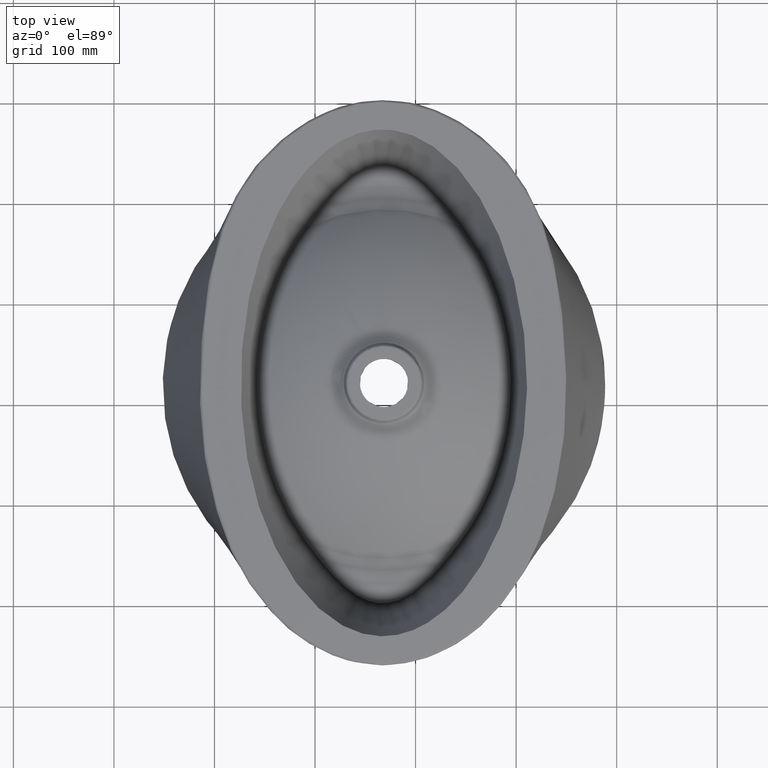
[diagram: clean part render]
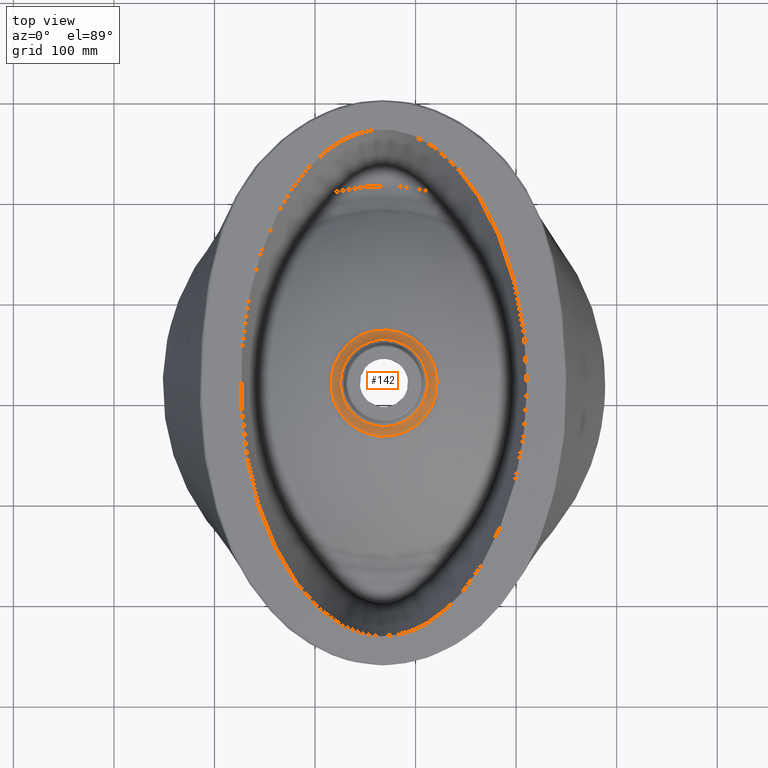
[diagram: same view with one face highlighted and labeled with its STEP entity id]
A machine part, top view. The second image highlights one B-rep face of the part: STEP entity #142.
In plain terms, the highlighted face is a freeform B-spline surface patch.
Its self-contained STEP definition (entity closure, byte-faithful):
#113=B_SPLINE_SURFACE_WITH_KNOTS('',3,3,((#1905,#1906,#1907,#1908),(#1909,
#1910,#1911,#1912),(#1913,#1914,#1915,#1916),(#1917,#1918,#1919,#1920),
(#1921,#1922,#1923,#1924),(#1925,#1926,#1927,#1928),(#1929,#1930,#1931,
#1932),(#1933,#1934,#1935,#1936),(#1937,#1938,#1939,#1940),(#1941,#1942,
#1943,#1944),(#1945,#1946,#1947,#1948),(#1949,#1950,#1951,#1952),(#1953,
#1954,#1955,#1956),(#1957,#1958,#1959,#1960),(#1961,#1962,#1963,#1964),
(#1965,#1966,#1967,#1968),(#1969,#1970,#1971,#1972),(#1973,#1974,#1975,
#1976),(#1977,#1978,#1979,#1980),(#1981,#1982,#1983,#1984),(#1985,#1986,
#1987,#1988),(#1989,#1990,#1991,#1992),(#1993,#1994,#1995,#1996),(#1997,
#1998,#1999,#2000),(#2001,#2002,#2003,#2004),(#2005,#2006,#2007,#2008),
(#2009,#2010,#2011,#2012),(#2013,#2014,#2015,#2016),(#2017,#2018,#2019,
#2020),(#2021,#2022,#2023,#2024),(#2025,#2026,#2027,#2028),(#2029,#2030,
#2031,#2032),(#2033,#2034,#2035,#2036),(#2037,#2038,#2039,#2040),(#2041,
#2042,#2043,#2044),(#2045,#2046,#2047,#2048),(#2049,#2050,#2051,#2052),
(#2053,#2054,#2055,#2056),(#2057,#2058,#2059,#2060),(#2061,#2062,#2063,
#2064),(#2065,#2066,#2067,#2068),(#2069,#2070,#2071,#2072),(#2073,#2074,
#2075,#2076),(#2077,#2078,#2079,#2080),(#2081,#2082,#2083,#2084),(#2085,
#2086,#2087,#2088),(#2089,#2090,#2091,#2092),(#2093,#2094,#2095,#2096),
(#2097,#2098,#2099,#2100),(#2101,#2102,#2103,#2104),(#2105,#2106,#2107,
#2108),(#2109,#2110,#2111,#2112),(#2113,#2114,#2115,#2116),(#2117,#2118,
#2119,#2120),(#2121,#2122,#2123,#2124),(#2125,#2126,#2127,#2128),(#2129,
#2130,#2131,#2132),(#2133,#2134,#2135,#2136),(#2137,#2138,#2139,#2140),
(#2141,#2142,#2143,#2144),(#2145,#2146,#2147,#2148),(#2149,#2150,#2151,
#2152),(#2153,#2154,#2155,#2156),(#2157,#2158,#2159,#2160),(#2161,#2162,
#2163,#2164),(#2165,#2166,#2167,#2168),(#2169,#2170,#2171,#2172),(#2173,
#2174,#2175,#2176),(#2177,#2178,#2179,#2180),(#2181,#2182,#2183,#2184),
(#2185,#2186,#2187,#2188),(#2189,#2190,#2191,#2192),(#2193,#2194,#2195,
#2196),(#2197,#2198,#2199,#2200),(#2201,#2202,#2203,#2204),(#2205,#2206,
#2207,#2208),(#2209,#2210,#2211,#2212),(#2213,#2214,#2215,#2216),(#2217,
#2218,#2219,#2220),(#2221,#2222,#2223,#2224),(#2225,#2226,#2227,#2228),
(#2229,#2230,#2231,#2232),(#2233,#2234,#2235,#2236),(#2237,#2238,#2239,
#2240),(#2241,#2242,#2243,#2244),(#2245,#2246,#2247,#2248),(#2249,#2250,
#2251,#2252),(#2253,#2254,#2255,#2256),(#2257,#2258,#2259,#2260),(#2261,
#2262,#2263,#2264),(#2265,#2266,#2267,#2268)),.UNSPECIFIED.,.T.,.F.,.F.,
(1,3,3,3,3,3,3,3,3,3,3,3,3,3,3,3,3,3,3,3,3,3,3,3,3,3,3,3,3,3,3,3,1),(4,
4),(-0.03125,0.,0.03125,0.0625000000000001,0.0937500000000001,0.125,0.15625,
0.1875,0.25,0.28125,0.3125,0.34375,0.375,0.40625,0.4375,0.46875,0.5,0.53125,
0.5625,0.59375,0.625,0.65625,0.6875,0.71875,0.75,0.8125,0.84375,0.875,0.90625,
0.9375,0.96875,1.,1.03125),(0.,1.),.UNSPECIFIED.);
#142=ADVANCED_FACE('',(#171,#172),#113,.T.);
#171=FACE_BOUND('',#204,.T.);
#172=FACE_BOUND('',#205,.T.);
#204=EDGE_LOOP('',(#254));
#205=EDGE_LOOP('',(#255));
#254=ORIENTED_EDGE('',*,*,#359,.T.);
#255=ORIENTED_EDGE('',*,*,#358,.T.);
#327=VERTEX_POINT('',#1268);
#328=VERTEX_POINT('',#1904);
#358=EDGE_CURVE('',#327,#327,#397,.T.);
#359=EDGE_CURVE('',#328,#328,#398,.T.);
#397=B_SPLINE_CURVE_WITH_KNOTS('',3,(#1177,#1178,#1179,#1180,#1181,#1182,
#1183,#1184,#1185,#1186,#1187,#1188,#1189,#1190,#1191,#1192,#1193,#1194,
#1195,#1196,#1197,#1198,#1199,#1200,#1201,#1202,#1203,#1204,#1205,#1206,
#1207,#1208,#1209,#1210,#1211,#1212,#1213,#1214,#1215,#1216,#1217,#1218,
#1219,#1220,#1221,#1222,#1223,#1224,#1225,#1226,#1227,#1228,#1229,#1230,
#1231,#1232,#1233,#1234,#1235,#1236,#1237,#1238,#1239,#1240,#1241,#1242,
#1243,#1244,#1245,#1246,#1247,#1248,#1249,#1250,#1251,#1252,#1253,#1254,
#1255,#1256,#1257,#1258,#1259,#1260,#1261,#1262,#1263,#1264,#1265,#1266,
#1267),.UNSPECIFIED.,.T.,.F.,(1,3,3,3,3,3,3,3,3,3,3,3,3,3,3,3,3,3,3,3,3,
3,3,3,3,3,3,3,3,3,3,3,1),(-0.03125,0.,0.03125,0.0624999999999999,0.09375,
0.125,0.15625,0.1875,0.25,0.28125,0.3125,0.34375,0.375,0.40625,0.4375,0.46875,
0.5,0.53125,0.5625,0.59375,0.625,0.65625,0.6875,0.71875,0.75,0.8125,0.84375,
0.875,0.90625,0.9375,0.96875,1.,1.03125),.UNSPECIFIED.);
#398=B_SPLINE_CURVE_WITH_KNOTS('',3,(#1813,#1814,#1815,#1816,#1817,#1818,
#1819,#1820,#1821,#1822,#1823,#1824,#1825,#1826,#1827,#1828,#1829,#1830,
#1831,#1832,#1833,#1834,#1835,#1836,#1837,#1838,#1839,#1840,#1841,#1842,
#1843,#1844,#1845,#1846,#1847,#1848,#1849,#1850,#1851,#1852,#1853,#1854,
#1855,#1856,#1857,#1858,#1859,#1860,#1861,#1862,#1863,#1864,#1865,#1866,
#1867,#1868,#1869,#1870,#1871,#1872,#1873,#1874,#1875,#1876,#1877,#1878,
#1879,#1880,#1881,#1882,#1883,#1884,#1885,#1886,#1887,#1888,#1889,#1890,
#1891,#1892,#1893,#1894,#1895,#1896,#1897,#1898,#1899,#1900,#1901,#1902,
#1903),.UNSPECIFIED.,.T.,.F.,(1,3,3,3,3,3,3,3,3,3,3,3,3,3,3,3,3,3,3,3,3,
3,3,3,3,3,3,3,3,3,3,3,1),(-0.03125,0.,0.03125,0.0625000000000001,0.0937500000000001,
0.125,0.15625,0.1875,0.25,0.28125,0.3125,0.34375,0.375,0.40625,0.4375,0.46875,
0.5,0.53125,0.5625,0.59375,0.625,0.65625,0.6875,0.71875,0.75,0.8125,0.84375,
0.875,0.90625,0.9375,0.96875,1.,1.03125),.UNSPECIFIED.);
#1177=CARTESIAN_POINT('',(251.203603856285,-229.984057679828,236.484429534104));
#1178=CARTESIAN_POINT('',(254.504285074435,-231.131225509551,236.4841846388));
#1179=CARTESIAN_POINT('',(257.865625167746,-231.938429762098,236.48351633577));
#1180=CARTESIAN_POINT('',(261.280975095904,-232.413874064229,236.483826752391));
#1181=CARTESIAN_POINT('',(264.696325024061,-232.889318366359,236.484137169011));
#1182=CARTESIAN_POINT('',(268.200274221157,-233.030035621638,236.484967793712));
#1183=CARTESIAN_POINT('',(271.661541713452,-232.8296229206,236.484360338313));
#1184=CARTESIAN_POINT('',(275.122809205748,-232.629210219562,236.483752882915));
#1185=CARTESIAN_POINT('',(278.529476222532,-232.091770768165,236.483540319828));
#1186=CARTESIAN_POINT('',(281.877086609996,-231.221788737702,236.484007594477));
#1187=CARTESIAN_POINT('',(285.22469699746,-230.351806707239,236.484474869126));
#1188=CARTESIAN_POINT('',(288.5268212123,-229.136029867212,236.485121776906));
#1189=CARTESIAN_POINT('',(291.634078423746,-227.634372946672,236.48440946252));
#1190=CARTESIAN_POINT('',(294.741335635192,-226.132716026133,236.483697148134));
#1191=CARTESIAN_POINT('',(297.687403980707,-224.334370851027,236.483536503372));
#1192=CARTESIAN_POINT('',(300.464801097345,-222.236472945791,236.484010315969));
#1193=CARTESIAN_POINT('',(303.242198213984,-220.138575040556,236.484484128567));
#1194=CARTESIAN_POINT('',(305.804468607405,-217.772913121959,236.484733044393));
#1195=CARTESIAN_POINT('',(308.096853649246,-215.200751658895,236.484248271385));
#1196=CARTESIAN_POINT('',(312.681623732927,-210.056428732767,236.483278725371));
#1197=CARTESIAN_POINT('',(316.283608489224,-203.932423104972,236.48474632667));
#1198=CARTESIAN_POINT('',(318.553520745294,-197.416270213941,236.4843273849));
#1199=CARTESIAN_POINT('',(319.688476873329,-194.158193768426,236.484117914015));
#1200=CARTESIAN_POINT('',(320.515625174468,-190.731904961712,236.484046832912));
#1201=CARTESIAN_POINT('',(320.994937087167,-187.303804866945,236.483961079013));
#1202=CARTESIAN_POINT('',(321.474248999865,-183.875704772179,236.483875325114));
#1203=CARTESIAN_POINT('',(321.613521571772,-180.435444203188,236.484568748967));
#1204=CARTESIAN_POINT('',(321.414512197684,-176.975495973843,236.484443103605));
#1205=CARTESIAN_POINT('',(321.215502823597,-173.515547744497,236.484317458243));
#1206=CARTESIAN_POINT('',(320.668950618815,-170.04117594627,236.483976786526));
#1207=CARTESIAN_POINT('',(319.803478140108,-166.701971303312,236.483928324786));
#1208=CARTESIAN_POINT('',(318.938005661402,-163.362766660354,236.483879863046));
#1209=CARTESIAN_POINT('',(317.751769132524,-160.123421843426,236.484506595007));
#1210=CARTESIAN_POINT('',(316.232107010083,-156.979779561151,236.484358570221));
#1211=CARTESIAN_POINT('',(314.712444887643,-153.836137278877,236.484210545435));
#1212=CARTESIAN_POINT('',(312.901716921675,-150.880772617699,236.484086001442));
#1213=CARTESIAN_POINT('',(310.823715268411,-148.128382497676,236.484549632874));
#1214=CARTESIAN_POINT('',(308.745713615147,-145.375992377652,236.485013264306));
#1215=CARTESIAN_POINT('',(306.373997015727,-142.797012894496,236.485082935706));
#1216=CARTESIAN_POINT('',(303.784673657299,-140.487590887325,236.484362058981));
#1217=CARTESIAN_POINT('',(301.195350298871,-138.178168880154,236.483641182256));
#1218=CARTESIAN_POINT('',(298.405602989752,-136.149995924477,236.483988181904));
#1219=CARTESIAN_POINT('',(295.42658777178,-134.396083930548,236.484172694874));
#1220=CARTESIAN_POINT('',(292.447572553808,-132.642171936619,236.484357207845));
#1221=CARTESIAN_POINT('',(289.258754359691,-131.162533016703,236.484502349206));
#1222=CARTESIAN_POINT('',(285.976576135453,-130.020181131538,236.484166828252));
#1223=CARTESIAN_POINT('',(282.694397911215,-128.877829246374,236.483831307299));
#1224=CARTESIAN_POINT('',(279.26927963217,-128.058281282792,236.484208553686));
#1225=CARTESIAN_POINT('',(275.844562814442,-127.583005263148,236.484297335159));
#1226=CARTESIAN_POINT('',(272.419845996713,-127.107729243505,236.484386116631));
#1227=CARTESIAN_POINT('',(268.979448007183,-126.967816801255,236.484531999096));
#1228=CARTESIAN_POINT('',(265.51531609032,-127.168792596557,236.484183876296));
#1229=CARTESIAN_POINT('',(262.051184173457,-127.369768391859,236.483835753496));
#1230=CARTESIAN_POINT('',(258.584752038489,-127.919965803922,236.483846036418));
#1231=CARTESIAN_POINT('',(255.247722868208,-128.788526761197,236.484027456491));
#1232=CARTESIAN_POINT('',(251.910693697926,-129.657087718471,236.484208876565));
#1233=CARTESIAN_POINT('',(248.663800359213,-130.848658586891,236.484788405733));
#1234=CARTESIAN_POINT('',(245.521142996613,-132.370075345379,236.484430700069));
#1235=CARTESIAN_POINT('',(242.378485634014,-133.891492103866,236.484072994405));
#1236=CARTESIAN_POINT('',(239.431720760806,-135.697114954661,236.483436220711));
#1237=CARTESIAN_POINT('',(236.679950744925,-137.776649623423,236.483753332178));
#1238=CARTESIAN_POINT('',(233.928180729043,-139.856184292185,236.484070443645));
#1239=CARTESIAN_POINT('',(231.349854494529,-142.238212606469,236.485227314462));
#1240=CARTESIAN_POINT('',(229.045564591665,-144.827175240955,236.484733430277));
#1241=CARTESIAN_POINT('',(226.7412746888,-147.416137875441,236.484239546092));
#1242=CARTESIAN_POINT('',(224.710117869525,-150.204467107586,236.483538093153));
#1243=CARTESIAN_POINT('',(222.956408614968,-153.188906189885,236.483793010407));
#1244=CARTESIAN_POINT('',(221.202699360411,-156.173345272184,236.484047927661));
#1245=CARTESIAN_POINT('',(219.73040319185,-159.369248473656,236.485176179643));
#1246=CARTESIAN_POINT('',(218.596705307143,-162.628872940857,236.484674025514));
#1247=CARTESIAN_POINT('',(216.329309537728,-169.148121875257,236.483669717256));
#1248=CARTESIAN_POINT('',(215.351100294958,-176.186962818079,236.484782089429));
#1249=CARTESIAN_POINT('',(215.752560334969,-183.068146457846,236.484520250633));
#1250=CARTESIAN_POINT('',(215.953290354975,-186.508738277729,236.484389331235));
#1251=CARTESIAN_POINT('',(216.496228780502,-189.961636078684,236.484513203026));
#1252=CARTESIAN_POINT('',(217.372000847585,-193.331229391843,236.484475947164));
#1253=CARTESIAN_POINT('',(218.247772914668,-196.700822705001,236.484438691301));
#1254=CARTESIAN_POINT('',(219.439297033806,-199.934369398847,236.484637409876));
#1255=CARTESIAN_POINT('',(220.942810644344,-203.041781574851,236.484418059583));
#1256=CARTESIAN_POINT('',(222.446324254882,-206.149193750854,236.48419870929));
#1257=CARTESIAN_POINT('',(224.287055083008,-209.157692622655,236.484127897629));
#1258=CARTESIAN_POINT('',(226.373130333001,-211.919001151154,236.484031090563));
#1259=CARTESIAN_POINT('',(228.459205582994,-214.680309679653,236.483934283497));
#1260=CARTESIAN_POINT('',(230.795338842015,-217.211258499501,236.48462700862));
#1261=CARTESIAN_POINT('',(233.386460713072,-219.517740969352,236.484498251119));
#1262=CARTESIAN_POINT('',(235.97758258413,-221.824223439202,236.484369493618));
#1263=CARTESIAN_POINT('',(238.820007553982,-223.891191409492,236.48398328872));
#1264=CARTESIAN_POINT('',(241.794465010375,-225.63853652409,236.483962761576));
#1265=CARTESIAN_POINT('',(244.768922466768,-227.385881638689,236.483942234433));
#1266=CARTESIAN_POINT('',(247.902922638135,-228.836889850104,236.484674429408));
#1267=CARTESIAN_POINT('',(251.203603856285,-229.984057679828,236.484429534104));
#1268=CARTESIAN_POINT('',(251.203605521211,-229.984052884276,236.484430601418));
#1813=CARTESIAN_POINT('',(254.360696583967,-220.902414069288,241.160742555782));
#1814=CARTESIAN_POINT('',(251.658243793951,-219.962956909894,241.161046422713));
#1815=CARTESIAN_POINT('',(249.097555156986,-218.778132386558,241.160120988136));
#1816=CARTESIAN_POINT('',(246.664198106565,-217.348441024559,241.160339469491));
#1817=CARTESIAN_POINT('',(244.230841056143,-215.91874966256,241.160557950846));
#1818=CARTESIAN_POINT('',(241.901159814309,-214.225107840676,241.160636984759));
#1819=CARTESIAN_POINT('',(239.779624780472,-212.336402250829,241.160823513861));
#1820=CARTESIAN_POINT('',(237.658089746635,-210.447696660982,241.161010042964));
#1821=CARTESIAN_POINT('',(235.751955338066,-208.383738702874,241.160114849802));
#1822=CARTESIAN_POINT('',(234.044544697194,-206.123328890928,241.160409055666));
#1823=CARTESIAN_POINT('',(232.337134056322,-203.862919078983,241.16070326153));
#1824=CARTESIAN_POINT('',(230.828054933145,-201.397525352288,241.160419092257));
#1825=CARTESIAN_POINT('',(229.598056388624,-198.854686904404,241.160801564015));
#1826=CARTESIAN_POINT('',(228.368057844104,-196.31184845652,241.161184035773));
#1827=CARTESIAN_POINT('',(227.394906600774,-193.672855945045,241.160739915354));
#1828=CARTESIAN_POINT('',(226.677381616515,-190.912490195587,241.160740368384));
#1829=CARTESIAN_POINT('',(225.959856632256,-188.152124446129,241.160740821414));
#1830=CARTESIAN_POINT('',(225.515109621778,-185.323506720159,241.160649532904));
#1831=CARTESIAN_POINT('',(225.351090105771,-182.508686404609,241.16086621456));
#1832=CARTESIAN_POINT('',(225.023051073757,-176.87904577351,241.161299577872));
#1833=CARTESIAN_POINT('',(225.818197058774,-171.13193138209,241.159566581617));
#1834=CARTESIAN_POINT('',(227.677791373681,-165.788371168173,241.161145402179));
#1835=CARTESIAN_POINT('',(228.607588531134,-163.116591061215,241.16193481246));
#1836=CARTESIAN_POINT('',(229.812675774228,-160.498527158416,241.160298601025));
#1837=CARTESIAN_POINT('',(231.245897488424,-158.059242870191,241.160030903165));
#1838=CARTESIAN_POINT('',(232.679119202621,-155.619958581967,241.159763205305));
#1839=CARTESIAN_POINT('',(234.337488343653,-153.342743543288,241.160413759833));
#1840=CARTESIAN_POINT('',(236.227160212269,-151.220475605809,241.161235730431));
#1841=CARTESIAN_POINT('',(238.116832080885,-149.09820766833,241.162057701029));
#1842=CARTESIAN_POINT('',(240.227805880037,-147.146683847958,241.160366602812));
#1843=CARTESIAN_POINT('',(242.477036472073,-145.446550948368,241.159904321605));
#1844=CARTESIAN_POINT('',(244.726267064108,-143.746418048777,241.159442040398));
#1845=CARTESIAN_POINT('',(247.137151683147,-142.269631319167,241.160277257193));
#1846=CARTESIAN_POINT('',(249.709973503579,-141.024489684759,241.160817676599));
#1847=CARTESIAN_POINT('',(252.282795324011,-139.779348050351,241.161358096005));
#1848=CARTESIAN_POINT('',(254.937873705251,-138.804066817887,241.160478486855));
#1849=CARTESIAN_POINT('',(257.669981551711,-138.092833536272,241.160277400374));
#1850=CARTESIAN_POINT('',(260.40208939817,-137.381600254657,241.160076313894));
#1851=CARTESIAN_POINT('',(263.239000635633,-136.931423735158,241.160038540089));
#1852=CARTESIAN_POINT('',(266.071366091124,-136.76740243767,241.160516331211));
#1853=CARTESIAN_POINT('',(268.903731546614,-136.603381140183,241.160994122333));
#1854=CARTESIAN_POINT('',(271.716326176696,-136.716792764649,241.160599591131));
#1855=CARTESIAN_POINT('',(274.523307362929,-137.106500280123,241.160705683465));
#1856=CARTESIAN_POINT('',(277.330288549162,-137.496207795596,241.1608117758));
#1857=CARTESIAN_POINT('',(280.131792429304,-138.166019767192,241.160043828075));
#1858=CARTESIAN_POINT('',(282.815407916378,-139.100324010564,241.16048057774));
#1859=CARTESIAN_POINT('',(285.499023403452,-140.034628253935,241.160917327406));
#1860=CARTESIAN_POINT('',(288.108443259406,-141.244672160769,241.16060536134));
#1861=CARTESIAN_POINT('',(290.5490417635,-142.681604141737,241.160510711813));
#1862=CARTESIAN_POINT('',(292.989640267593,-144.118536122706,241.160416062286));
#1863=CARTESIAN_POINT('',(295.267878174627,-145.774038350103,241.159672771122));
#1864=CARTESIAN_POINT('',(297.383808053213,-147.662253130211,241.160837499813));
#1865=CARTESIAN_POINT('',(299.499737931799,-149.550467910319,241.162002228505));
#1866=CARTESIAN_POINT('',(301.447775171073,-151.668615337496,241.162276615049));
#1867=CARTESIAN_POINT('',(303.150303545736,-153.922786713203,241.161491803861));
#1868=CARTESIAN_POINT('',(304.852831920399,-156.176958088911,241.160706992673));
#1869=CARTESIAN_POINT('',(306.331658027213,-158.590407413665,241.160482573795));
#1870=CARTESIAN_POINT('',(307.575541465307,-161.163819757696,241.160638036483));
#1871=CARTESIAN_POINT('',(308.8194249034,-163.737232101727,241.16079349917));
#1872=CARTESIAN_POINT('',(309.788575930263,-166.382252432874,241.160046013748));
#1873=CARTESIAN_POINT('',(310.496488753643,-169.114416502052,241.160312613169));
#1874=CARTESIAN_POINT('',(311.204401577023,-171.84658057123,241.16057921259));
#1875=CARTESIAN_POINT('',(311.652793641658,-174.694019683641,241.160580958846));
#1876=CARTESIAN_POINT('',(311.815579348263,-177.527083210933,241.160763715161));
#1877=CARTESIAN_POINT('',(311.978365054869,-180.360146738225,241.160946471475));
#1878=CARTESIAN_POINT('',(311.865509936837,-183.166519195619,241.160057526113));
#1879=CARTESIAN_POINT('',(311.47299101747,-185.972616915723,241.160318249221));
#1880=CARTESIAN_POINT('',(311.080472098102,-188.778714635828,241.160578972328));
#1881=CARTESIAN_POINT('',(310.403124195693,-191.586572234754,241.160361022727));
#1882=CARTESIAN_POINT('',(309.474131028258,-194.25277506793,241.160645255198));
#1883=CARTESIAN_POINT('',(307.616144693388,-199.585180734284,241.16121372014));
#1884=CARTESIAN_POINT('',(304.670911149663,-204.5951857905,241.159220053073));
#1885=CARTESIAN_POINT('',(300.91968196129,-208.802894059278,241.160645288815));
#1886=CARTESIAN_POINT('',(299.044067367104,-210.906748193668,241.161357906686));
#1887=CARTESIAN_POINT('',(296.942206361429,-212.848005522046,241.160796880107));
#1888=CARTESIAN_POINT('',(294.669226917486,-214.565244753171,241.160219426796));
#1889=CARTESIAN_POINT('',(292.396247473543,-216.282483984295,241.159641973484));
#1890=CARTESIAN_POINT('',(289.995899719228,-217.747908302525,241.159811228002));
#1891=CARTESIAN_POINT('',(287.451541233074,-218.976760246497,241.16091766071));
#1892=CARTESIAN_POINT('',(284.90718274692,-220.205612190468,241.162024093419));
#1893=CARTESIAN_POINT('',(282.197594027503,-221.204451912624,241.160790528604));
#1894=CARTESIAN_POINT('',(279.457943472629,-221.916737766674,241.16020885853));
#1895=CARTESIAN_POINT('',(276.718292917755,-222.629023620724,241.159627188455));
#1896=CARTESIAN_POINT('',(273.94127546177,-223.06714077895,241.159938077287));
#1897=CARTESIAN_POINT('',(271.106931262725,-223.230829642153,241.160731217343));
#1898=CARTESIAN_POINT('',(268.27258706368,-223.394518505357,241.161524357398));
#1899=CARTESIAN_POINT('',(265.398305758494,-223.27980190305,241.1604079004));
#1900=CARTESIAN_POINT('',(262.605900064338,-222.891263186108,241.160044391097));
#1901=CARTESIAN_POINT('',(259.813494370181,-222.502724469167,241.159680881795));
#1902=CARTESIAN_POINT('',(257.063149373983,-221.841871228681,241.160438688851));
#1903=CARTESIAN_POINT('',(254.360696583967,-220.902414069288,241.160742555782));
#1904=CARTESIAN_POINT('',(254.360691722704,-220.90242806106,241.160763542788));
#1905=CARTESIAN_POINT('',(254.360696583967,-220.902414069288,241.160742555782));
#1906=CARTESIAN_POINT('',(253.455110084923,-223.507181538538,238.846756456241));
#1907=CARTESIAN_POINT('',(252.360308442446,-226.656470836895,237.225126805652));
#1908=CARTESIAN_POINT('',(251.203603856285,-229.984057679828,236.484429534104));
#1909=CARTESIAN_POINT('',(251.658243793951,-219.962956909894,241.161046422713));
#1910=CARTESIAN_POINT('',(250.581143981849,-222.508160592243,238.847004721556));
#1911=CARTESIAN_POINT('',(249.2788895563,-225.585426625061,237.2253517089));
#1912=CARTESIAN_POINT('',(247.902922638135,-228.836889850104,236.484674429408));
#1913=CARTESIAN_POINT('',(249.097555156986,-218.778132386558,241.160120988136));
#1914=CARTESIAN_POINT('',(247.856071213124,-221.247050818924,238.846233470114));
#1915=CARTESIAN_POINT('',(246.355013019138,-224.231997150388,237.224654902975));
#1916=CARTESIAN_POINT('',(244.768922466768,-227.385881638689,236.483942234433));
#1917=CARTESIAN_POINT('',(246.664198106565,-217.348441024559,241.160339469491));
#1918=CARTESIAN_POINT('',(245.267466381795,-219.72619645091,238.846356848626));
#1919=CARTESIAN_POINT('',(243.578765140143,-222.600993546961,237.224706750541));
#1920=CARTESIAN_POINT('',(241.794465010375,-225.63853652409,236.483962761576));
#1921=CARTESIAN_POINT('',(244.230841056143,-215.91874966256,241.160557950846));
#1922=CARTESIAN_POINT('',(242.678861550466,-218.205342082896,238.846480227139));
#1923=CARTESIAN_POINT('',(240.802517261148,-220.969989943534,237.224758598108));
#1924=CARTESIAN_POINT('',(238.820007553982,-223.891191409492,236.48398328872));
#1925=CARTESIAN_POINT('',(241.901159814309,-214.225107840676,241.160636984759));
#1926=CARTESIAN_POINT('',(240.202070547642,-216.404611105963,238.846691153741));
#1927=CARTESIAN_POINT('',(238.147923376192,-219.039793266454,237.225079340391));
#1928=CARTESIAN_POINT('',(235.97758258413,-221.824223439202,236.484369493618));
#1929=CARTESIAN_POINT('',(239.779624780472,-212.336402250829,241.160823513861));
#1930=CARTESIAN_POINT('',(237.945909770917,-214.396120311148,238.846827899438));
#1931=CARTESIAN_POINT('',(235.728918039715,-216.886431585829,237.225193552092));
#1932=CARTESIAN_POINT('',(233.386460713072,-219.517740969352,236.484498251119));
#1933=CARTESIAN_POINT('',(237.658089746635,-210.447696660982,241.161010042964));
#1934=CARTESIAN_POINT('',(235.689748994192,-212.387629516334,238.846964645135));
#1935=CARTESIAN_POINT('',(233.309912703238,-214.733069905203,237.225307763793));
#1936=CARTESIAN_POINT('',(230.795338842015,-217.211258499501,236.48462700862));
#1937=CARTESIAN_POINT('',(235.751955338066,-208.383738702874,241.160114849802));
#1938=CARTESIAN_POINT('',(233.66025081104,-210.189742649618,238.84622665408));
#1939=CARTESIAN_POINT('',(231.13131292698,-212.373231930048,237.224647446554));
#1940=CARTESIAN_POINT('',(228.459205582994,-214.680309679653,236.483934283497));
#1941=CARTESIAN_POINT('',(234.044544697194,-206.123328890928,241.160409055666));
#1942=CARTESIAN_POINT('',(231.844225367862,-207.785619325874,238.84642275704));
#1943=CARTESIAN_POINT('',(229.183970955281,-209.795413344575,237.224771973238));
#1944=CARTESIAN_POINT('',(226.373130333001,-211.919001151154,236.484031090563));
#1945=CARTESIAN_POINT('',(232.337134056322,-203.862919078983,241.16070326153));
#1946=CARTESIAN_POINT('',(230.028199924684,-205.38149600213,238.84661886));
#1947=CARTESIAN_POINT('',(227.236628983582,-207.217594759103,237.224896499922));
#1948=CARTESIAN_POINT('',(224.287055083008,-209.157692622655,236.484127897629));
#1949=CARTESIAN_POINT('',(230.828054933145,-201.397525352288,241.160419092257));
#1950=CARTESIAN_POINT('',(228.423951906666,-202.760308060893,238.846505549476));
#1951=CARTESIAN_POINT('',(225.517381575923,-204.408066142603,237.224911485709));
#1952=CARTESIAN_POINT('',(222.446324254882,-206.149193750854,236.48419870929));
#1953=CARTESIAN_POINT('',(229.598056388624,-198.854686904404,241.160801564015));
#1954=CARTESIAN_POINT('',(227.115540441195,-200.055562009916,238.84677867195));
#1955=CARTESIAN_POINT('',(224.114113062781,-201.507543958342,237.225123331726));
#1956=CARTESIAN_POINT('',(220.942810644344,-203.041781574851,236.484418059583));
#1957=CARTESIAN_POINT('',(228.368057844104,-196.31184845652,241.161184035773));
#1958=CARTESIAN_POINT('',(225.807128975724,-197.350815958938,238.847051794424));
#1959=CARTESIAN_POINT('',(222.71084454964,-198.607021774081,237.225335177743));
#1960=CARTESIAN_POINT('',(219.439297033806,-199.934369398847,236.484637409876));
#1961=CARTESIAN_POINT('',(227.394906600774,-193.672855945045,241.160739915354));
#1962=CARTESIAN_POINT('',(224.771327048204,-194.541328895424,238.846765867576));
#1963=CARTESIAN_POINT('',(221.599328643729,-195.591352250526,237.225140960904));
#1964=CARTESIAN_POINT('',(218.247772914668,-196.700822705001,236.484438691301));
#1965=CARTESIAN_POINT('',(226.677381616515,-190.912490195587,241.160740368384));
#1966=CARTESIAN_POINT('',(224.008410542849,-191.606228110642,238.846794619753));
#1967=CARTESIAN_POINT('',(220.781538690942,-192.444985988832,237.225183811166));
#1968=CARTESIAN_POINT('',(217.372000847585,-193.331229391843,236.484475947164));
#1969=CARTESIAN_POINT('',(225.959856632256,-188.152124446129,241.160740821414));
#1970=CARTESIAN_POINT('',(223.245494037495,-188.67112732586,238.846823371929));
#1971=CARTESIAN_POINT('',(219.963748738154,-189.298619727139,237.225226661428));
#1972=CARTESIAN_POINT('',(216.496228780502,-189.961636078684,236.484513203026));
#1973=CARTESIAN_POINT('',(225.515109621778,-185.323506720159,241.160649532904));
#1974=CARTESIAN_POINT('',(222.772580726231,-185.663384998713,238.846706689077));
#1975=CARTESIAN_POINT('',(219.456782741525,-186.074393843775,237.225097471198));
#1976=CARTESIAN_POINT('',(215.953290354975,-186.508738277729,236.484389331235));
#1977=CARTESIAN_POINT('',(225.351090105771,-182.508686404609,241.16086621456));
#1978=CARTESIAN_POINT('',(222.598046114882,-182.669106471712,238.846858747299));
#1979=CARTESIAN_POINT('',(219.269511643816,-182.863113482874,237.225216775951));
#1980=CARTESIAN_POINT('',(215.752560334969,-183.068146457846,236.484520250633));
#1981=CARTESIAN_POINT('',(225.023051073757,-176.87904577351,241.161299577872));
#1982=CARTESIAN_POINT('',(222.248976892185,-176.68054941771,238.847162863743));
#1983=CARTESIAN_POINT('',(218.894969448398,-176.440552761071,237.225455385458));
#1984=CARTESIAN_POINT('',(215.351100294958,-176.186962818079,236.484782089429));
#1985=CARTESIAN_POINT('',(225.818197058774,-171.13193138209,241.159566581617));
#1986=CARTESIAN_POINT('',(223.096673388295,-170.56252290692,238.84586033857));
#1987=CARTESIAN_POINT('',(219.806185113402,-169.87459594404,237.224387081139));
#1988=CARTESIAN_POINT('',(216.329309537728,-169.148121875257,236.483669717256));
#1989=CARTESIAN_POINT('',(227.677791373681,-165.788371168173,241.161145402179));
#1990=CARTESIAN_POINT('',(225.073224412392,-164.882031194204,238.847064874588));
#1991=CARTESIAN_POINT('',(221.924121290254,-163.786392890687,237.225376620018));
#1992=CARTESIAN_POINT('',(218.596705307143,-162.628872940857,236.484674025514));
#1993=CARTESIAN_POINT('',(228.607588531134,-163.116591061215,241.16193481246));
#1994=CARTESIAN_POINT('',(226.061499924441,-162.041785337846,238.847667142597));
#1995=CARTESIAN_POINT('',(222.98308937868,-160.742291364011,237.225871389458));
#1996=CARTESIAN_POINT('',(219.73040319185,-159.369248473656,236.485176179643));
#1997=CARTESIAN_POINT('',(229.812675774228,-160.498527158416,241.160298601025));
#1998=CARTESIAN_POINT('',(227.343062336431,-159.258154300634,238.846368431657));
#1999=CARTESIAN_POINT('',(224.35734095146,-157.758290671637,237.224763265524));
#2000=CARTESIAN_POINT('',(221.202699360411,-156.173345272184,236.484047927661));
#2001=CARTESIAN_POINT('',(231.245897488424,-158.059242870191,241.160030903165));
#2002=CARTESIAN_POINT('',(228.868263712878,-156.662397031944,238.84612909292));
#2003=CARTESIAN_POINT('',(225.99368245015,-154.97348969663,237.224530218516));
#2004=CARTESIAN_POINT('',(222.956408614968,-153.188906189885,236.483793010407));
#2005=CARTESIAN_POINT('',(232.679119202621,-155.619958581967,241.159763205305));
#2006=CARTESIAN_POINT('',(230.393465089325,-154.066639763254,238.845889754183));
#2007=CARTESIAN_POINT('',(227.630023948839,-152.188688721623,237.224297171508));
#2008=CARTESIAN_POINT('',(224.710117869525,-150.204467107586,236.483538093153));
#2009=CARTESIAN_POINT('',(234.337488343653,-153.342743543288,241.160413759833));
#2010=CARTESIAN_POINT('',(232.158921052202,-151.642643820078,238.846522730096));
#2011=CARTESIAN_POINT('',(229.524748099872,-149.587449743791,237.224945372994));
#2012=CARTESIAN_POINT('',(226.7412746888,-147.416137875441,236.484239546092));
#2013=CARTESIAN_POINT('',(236.227160212269,-151.220475605809,241.161235730431));
#2014=CARTESIAN_POINT('',(234.167451145322,-149.386657883836,238.847136294342));
#2015=CARTESIAN_POINT('',(231.677044649332,-147.169613427341,237.225436560455));
#2016=CARTESIAN_POINT('',(229.045564591665,-144.827175240955,236.484733430277));
#2017=CARTESIAN_POINT('',(238.116832080885,-149.09820766833,241.162057701029));
#2018=CARTESIAN_POINT('',(236.175981238442,-147.130671947593,238.847749858588));
#2019=CARTESIAN_POINT('',(233.829341198792,-144.751777110891,237.225927747916));
#2020=CARTESIAN_POINT('',(231.349854494529,-142.238212606469,236.485227314462));
#2021=CARTESIAN_POINT('',(240.227805880037,-147.146683847958,241.160366602812));
#2022=CARTESIAN_POINT('',(238.420783857138,-145.055757568078,238.846411351517));
#2023=CARTESIAN_POINT('',(236.236232842909,-142.527595398543,237.224789505884));
#2024=CARTESIAN_POINT('',(233.928180729043,-139.856184292185,236.484070443645));
#2025=CARTESIAN_POINT('',(242.477036472073,-145.446550948368,241.159904321605));
#2026=CARTESIAN_POINT('',(240.814232571743,-143.246716024012,238.846050106865));
#2027=CARTESIAN_POINT('',(238.803954649062,-140.586994565957,237.224483074806));
#2028=CARTESIAN_POINT('',(236.679950744925,-137.776649623423,236.483753332178));
#2029=CARTESIAN_POINT('',(244.726267064108,-143.746418048777,241.159442040398));
#2030=CARTESIAN_POINT('',(243.207681286348,-141.437674479945,238.845688862214));
#2031=CARTESIAN_POINT('',(241.371676455215,-138.646393733372,237.224176643727));
#2032=CARTESIAN_POINT('',(239.431720760806,-135.697114954661,236.483436220711));
#2033=CARTESIAN_POINT('',(247.137151683147,-142.269631319167,241.160277257193));
#2034=CARTESIAN_POINT('',(245.772415452029,-139.866527514632,238.846377923635));
#2035=CARTESIAN_POINT('',(244.122231391666,-136.961203955034,237.224790171067));
#2036=CARTESIAN_POINT('',(242.378485634014,-133.891492103866,236.484072994405));
#2037=CARTESIAN_POINT('',(249.709973503579,-141.024489684759,241.160817676599));
#2038=CARTESIAN_POINT('',(248.50863475763,-138.542196048944,238.846792442051));
#2039=CARTESIAN_POINT('',(247.056050772544,-135.541056793302,237.22513579615));
#2040=CARTESIAN_POINT('',(245.521142996613,-132.370075345379,236.484430700069));
#2041=CARTESIAN_POINT('',(252.282795324011,-139.779348050351,241.161358096005));
#2042=CARTESIAN_POINT('',(251.244854063232,-137.217864583257,238.847206960467));
#2043=CARTESIAN_POINT('',(249.989870153422,-134.120909631571,237.225481421233));
#2044=CARTESIAN_POINT('',(248.663800359213,-130.848658586891,236.484788405733));
#2045=CARTESIAN_POINT('',(254.937873705251,-138.804066817887,241.160478486855));
#2046=CARTESIAN_POINT('',(254.069535712851,-136.18055551332,238.846531241148));
#2047=CARTESIAN_POINT('',(253.019786099024,-133.008613313456,237.224918632223));
#2048=CARTESIAN_POINT('',(251.910693697926,-129.657087718471,236.484208876565));
#2049=CARTESIAN_POINT('',(257.669981551711,-138.092833536272,241.160277400374));
#2050=CARTESIAN_POINT('',(256.97517403021,-135.424183953617,238.846358890184));
#2051=CARTESIAN_POINT('',(256.135196582628,-132.197687993595,237.224754839853));
#2052=CARTESIAN_POINT('',(255.247722868208,-128.788526761197,236.484027456491));
#2053=CARTESIAN_POINT('',(260.40208939817,-137.381600254657,241.160076313894));
#2054=CARTESIAN_POINT('',(259.880812347569,-134.667812393914,238.84618653922));
#2055=CARTESIAN_POINT('',(259.250607066232,-131.386762673735,237.224591047483));
#2056=CARTESIAN_POINT('',(258.584752038489,-127.919965803922,236.483846036418));
#2057=CARTESIAN_POINT('',(263.239000635633,-136.931423735158,241.160038540089));
#2058=CARTESIAN_POINT('',(262.898407237474,-134.188929404067,238.846150297102));
#2059=CARTESIAN_POINT('',(262.486502532282,-130.873194145685,237.224563859968));
#2060=CARTESIAN_POINT('',(262.051184173457,-127.369768391859,236.483835753496));
#2061=CARTESIAN_POINT('',(266.071366091124,-136.76740243767,241.160516331211));
#2062=CARTESIAN_POINT('',(265.911984487131,-134.01433010453,238.846530655133));
#2063=CARTESIAN_POINT('',(265.719160158779,-130.685770634971,237.22489471688));
#2064=CARTESIAN_POINT('',(265.51531609032,-127.168792596557,236.484183876296));
#2065=CARTESIAN_POINT('',(268.903731546614,-136.603381140183,241.160994122333));
#2066=CARTESIAN_POINT('',(268.925561736787,-133.839730804993,238.846911013164));
#2067=CARTESIAN_POINT('',(268.951817785276,-130.498347124256,237.225225573793));
#2068=CARTESIAN_POINT('',(268.979448007183,-126.967816801255,236.484531999096));
#2069=CARTESIAN_POINT('',(271.716326176696,-136.716792764649,241.160599591131));
#2070=CARTESIAN_POINT('',(271.918112263204,-133.960717640449,238.846674175988));
#2071=CARTESIAN_POINT('',(272.162074840199,-130.628537093233,237.225081465292));
#2072=CARTESIAN_POINT('',(272.419845996713,-127.107729243505,236.484386116631));
#2073=CARTESIAN_POINT('',(274.523307362929,-137.106500280123,241.160705683465));
#2074=CARTESIAN_POINT('',(274.902237827741,-134.374982003975,238.846691643422));
#2075=CARTESIAN_POINT('',(275.360416539385,-131.072469479061,237.225028891001));
#2076=CARTESIAN_POINT('',(275.844562814442,-127.583005263148,236.484297335159));
#2077=CARTESIAN_POINT('',(277.330288549162,-137.496207795596,241.1608117758));
#2078=CARTESIAN_POINT('',(277.886363392277,-134.789246367502,238.846709110856));
#2079=CARTESIAN_POINT('',(278.558758238572,-131.516401864889,237.22497631671));
#2080=CARTESIAN_POINT('',(279.26927963217,-128.058281282792,236.484208553686));
#2081=CARTESIAN_POINT('',(280.131792429304,-138.166019767192,241.160043828075));
#2082=CARTESIAN_POINT('',(280.86689413591,-135.50199984297,238.846150596178));
#2083=CARTESIAN_POINT('',(281.755539159843,-132.281094585844,237.224560618049));
#2084=CARTESIAN_POINT('',(282.694397911215,-128.877829246374,236.483831307299));
#2085=CARTESIAN_POINT('',(282.815407916378,-139.100324010564,241.16048057774));
#2086=CARTESIAN_POINT('',(283.722187698957,-136.49599522557,238.846505492228));
#2087=CARTESIAN_POINT('',(284.818402049976,-133.347227984007,237.224876433982));
#2088=CARTESIAN_POINT('',(285.976576135453,-130.020181131538,236.484166828252));
#2089=CARTESIAN_POINT('',(285.499023403452,-140.034628253935,241.160917327406));
#2090=CARTESIAN_POINT('',(286.577481262004,-137.48999060817,238.846860388278));
#2091=CARTESIAN_POINT('',(287.88126494011,-134.41336138217,237.225192249915));
#2092=CARTESIAN_POINT('',(289.258754359691,-131.162533016703,236.484502349206));
#2093=CARTESIAN_POINT('',(288.108443259406,-141.244672160769,241.16060536134));
#2094=CARTESIAN_POINT('',(289.352947464204,-138.777278504462,238.846663370183));
#2095=CARTESIAN_POINT('',(290.857648329798,-135.794147791891,237.225058134351));
#2096=CARTESIAN_POINT('',(292.447572553808,-132.642171936619,236.484357207845));
#2097=CARTESIAN_POINT('',(290.5490417635,-142.681604141737,241.160510711813));
#2098=CARTESIAN_POINT('',(291.947966714948,-140.305128381334,238.846539530124));
#2099=CARTESIAN_POINT('',(293.63937725175,-137.431917925851,237.22490287471));
#2100=CARTESIAN_POINT('',(295.42658777178,-134.396083930548,236.484172694874));
#2101=CARTESIAN_POINT('',(292.989640267593,-144.118536122706,241.160416062286));
#2102=CARTESIAN_POINT('',(294.542985965693,-141.832978258206,238.846415690065));
#2103=CARTESIAN_POINT('',(296.421106173702,-139.06968805981,237.224747615068));
#2104=CARTESIAN_POINT('',(298.405602989752,-136.149995924477,236.483988181904));
#2105=CARTESIAN_POINT('',(295.267878174627,-145.774038350103,241.159672771122));
#2106=CARTESIAN_POINT('',(296.968162038897,-143.595485277776,238.845883233914));
#2107=CARTESIAN_POINT('',(299.023650493957,-140.961438819655,237.224359897942));
#2108=CARTESIAN_POINT('',(301.195350298871,-138.178168880154,236.483641182256));
#2109=CARTESIAN_POINT('',(297.383808053213,-147.662253130211,241.160837499813));
#2110=CARTESIAN_POINT('',(299.219845087178,-145.60457249468,238.846768215163));
#2111=CARTESIAN_POINT('',(301.439510676622,-143.116572920645,237.225079484615));
#2112=CARTESIAN_POINT('',(303.784673657299,-140.487590887325,236.484362058981));
#2113=CARTESIAN_POINT('',(299.499737931799,-149.550467910319,241.162002228505));
#2114=CARTESIAN_POINT('',(301.471528135459,-147.613659711584,238.847653196412));
#2115=CARTESIAN_POINT('',(303.855370859287,-145.271707021635,237.225799071288));
#2116=CARTESIAN_POINT('',(306.373997015727,-142.797012894496,236.485082935706));
#2117=CARTESIAN_POINT('',(301.447775171073,-151.668615337496,241.162276615049));
#2118=CARTESIAN_POINT('',(303.540794911794,-149.863728363049,238.847769384567));
#2119=CARTESIAN_POINT('',(306.071569250694,-147.681578103365,237.225791466493));
#2120=CARTESIAN_POINT('',(308.745713615147,-145.375992377652,236.485013264306));
#2121=CARTESIAN_POINT('',(303.150303545736,-153.922786713203,241.161491803861));
#2122=CARTESIAN_POINT('',(305.351051329088,-152.260771122347,238.847184796723));
#2123=CARTESIAN_POINT('',(308.012018004811,-150.25140200722,237.225326396435));
#2124=CARTESIAN_POINT('',(310.823715268411,-148.128382497676,236.484549632874));
#2125=CARTESIAN_POINT('',(304.852831920399,-156.176958088911,241.160706992673));
#2126=CARTESIAN_POINT('',(307.161307746382,-154.657813881644,238.846600208879));
#2127=CARTESIAN_POINT('',(309.952466758929,-152.821225911075,237.224861326378));
#2128=CARTESIAN_POINT('',(312.901716921675,-150.880772617699,236.484086001442));
#2129=CARTESIAN_POINT('',(306.331658027213,-158.590407413665,241.160482573795));
#2130=CARTESIAN_POINT('',(308.735484686036,-157.226882737693,238.846541252967));
#2131=CARTESIAN_POINT('',(311.641729652061,-155.578221815022,237.224928303715));
#2132=CARTESIAN_POINT('',(314.712444887643,-153.836137278877,236.484210545435));
#2133=CARTESIAN_POINT('',(307.575541465307,-161.163819757696,241.160638036483));
#2134=CARTESIAN_POINT('',(310.05843717687,-159.963797277526,238.846672633741));
#2135=CARTESIAN_POINT('',(313.060318376332,-158.512876408409,237.225055453048));
#2136=CARTESIAN_POINT('',(316.232107010083,-156.979779561151,236.484358570221));
#2137=CARTESIAN_POINT('',(308.8194249034,-163.737232101727,241.16079349917));
#2138=CARTESIAN_POINT('',(311.381389667703,-162.70071181736,238.846804014514));
#2139=CARTESIAN_POINT('',(314.478907100602,-161.447531001796,237.225182602381));
#2140=CARTESIAN_POINT('',(317.751769132524,-160.123421843426,236.484506595007));
#2141=CARTESIAN_POINT('',(309.788575930263,-166.382252432874,241.160046013748));
#2142=CARTESIAN_POINT('',(312.412812900122,-165.516145674644,238.846168075524));
#2143=CARTESIAN_POINT('',(315.58559890747,-164.46906549461,237.224594327914));
#2144=CARTESIAN_POINT('',(318.938005661402,-163.362766660354,236.483879863046));
#2145=CARTESIAN_POINT('',(310.496488753643,-169.114416502052,241.160312613169));
#2146=CARTESIAN_POINT('',(313.165910160172,-168.422490110324,238.846327590921));
#2147=CARTESIAN_POINT('',(316.393340573357,-167.585914642012,237.224674847015));
#2148=CARTESIAN_POINT('',(319.803478140108,-166.701971303312,236.483928324786));
#2149=CARTESIAN_POINT('',(311.204401577023,-171.84658057123,241.16057921259));
#2150=CARTESIAN_POINT('',(313.919007420222,-171.328834546003,238.846487106319));
#2151=CARTESIAN_POINT('',(317.201082239245,-170.702763789413,237.224755366115));
#2152=CARTESIAN_POINT('',(320.668950618815,-170.04117594627,236.483976786526));
#2153=CARTESIAN_POINT('',(311.652793641658,-174.694019683641,241.160580958846));
#2154=CARTESIAN_POINT('',(314.395579988836,-174.356126187713,238.846639315999));
#2155=CARTESIAN_POINT('',(317.711686247936,-173.94746152047,237.225029115606));
#2156=CARTESIAN_POINT('',(321.215502823597,-173.515547744497,236.484317458243));
#2157=CARTESIAN_POINT('',(311.815579348263,-177.527083210933,241.160763715161));
#2158=CARTESIAN_POINT('',(314.568741646554,-177.368919333926,238.846772845897));
#2159=CARTESIAN_POINT('',(317.897414454114,-177.177642504939,237.225140368277));
#2160=CARTESIAN_POINT('',(321.414512197684,-176.975495973843,236.484443103605));
#2161=CARTESIAN_POINT('',(311.978365054869,-180.360146738225,241.160946471475));
#2162=CARTESIAN_POINT('',(314.741903304271,-180.381712480139,238.846906375796));
#2163=CARTESIAN_POINT('',(318.083142660293,-180.407823489408,237.225251620948));
#2164=CARTESIAN_POINT('',(321.613521571772,-180.435444203188,236.484568748967));
#2165=CARTESIAN_POINT('',(311.865509936837,-183.166519195619,241.160057526113));
#2166=CARTESIAN_POINT('',(314.621502425314,-183.369908009825,238.846171202544));
#2167=CARTESIAN_POINT('',(317.953565803778,-183.615834952621,237.224591604345));
#2168=CARTESIAN_POINT('',(321.474248999865,-183.875704772179,236.483875325114));
#2169=CARTESIAN_POINT('',(311.47299101747,-185.972616915723,241.160318249221));
#2170=CARTESIAN_POINT('',(314.204064166284,-186.354445700353,238.846346084096));
#2171=CARTESIAN_POINT('',(317.506035385515,-186.816068174388,237.224703126465));
#2172=CARTESIAN_POINT('',(320.994937087167,-187.303804866945,236.483961079013));
#2173=CARTESIAN_POINT('',(311.080472098102,-188.778714635828,241.160578972328));
#2174=CARTESIAN_POINT('',(313.786625907254,-189.338983390881,238.846520965648));
#2175=CARTESIAN_POINT('',(317.058504967252,-190.016301396155,237.224814648585));
#2176=CARTESIAN_POINT('',(320.515625174468,-190.731904961712,236.484046832912));
#2177=CARTESIAN_POINT('',(310.403124195693,-191.586572234754,241.160361022727));
#2178=CARTESIAN_POINT('',(313.066320282438,-192.32426991196,238.846438856113));
#2179=CARTESIAN_POINT('',(316.286244420759,-193.216042425874,237.224836752979));
#2180=CARTESIAN_POINT('',(319.688476873329,-194.158193768426,236.484117914015));
#2181=CARTESIAN_POINT('',(309.474131028258,-194.25277506793,241.160645255198));
#2182=CARTESIAN_POINT('',(312.078254619312,-195.160189119393,238.846660912636));
#2183=CARTESIAN_POINT('',(315.226761862978,-196.25721080179,237.225029817686));
#2184=CARTESIAN_POINT('',(318.553520745294,-197.416270213941,236.4843273849));
#2185=CARTESIAN_POINT('',(307.616144693388,-199.585180734284,241.16121372014));
#2186=CARTESIAN_POINT('',(310.102123293061,-200.83202753426,238.847105025683));
#2187=CARTESIAN_POINT('',(313.107796747416,-202.339547553621,237.225415947101));
#2188=CARTESIAN_POINT('',(316.283608489224,-203.932423104972,236.48474632667));
#2189=CARTESIAN_POINT('',(304.670911149663,-204.5951857905,241.159220053073));
#2190=CARTESIAN_POINT('',(306.968460276314,-206.161757278915,238.845507545674));
#2191=CARTESIAN_POINT('',(309.74635806785,-208.055563817533,237.224019359944));
#2192=CARTESIAN_POINT('',(312.681623732927,-210.056428732767,236.483278725371));
#2193=CARTESIAN_POINT('',(300.91968196129,-208.802894059278,241.160645288815));
#2194=CARTESIAN_POINT('',(302.978132248207,-210.63802546414,238.846622563246));
#2195=CARTESIAN_POINT('',(305.466999255086,-212.85664547028,237.224962840757));
#2196=CARTESIAN_POINT('',(308.096853649246,-215.200751658895,236.484248271385));
#2197=CARTESIAN_POINT('',(299.044067367104,-210.906748193668,241.161357906686));
#2198=CARTESIAN_POINT('',(300.982968234153,-212.876159556752,238.847180072033));
#2199=CARTESIAN_POINT('',(303.327319848704,-215.257186296653,237.225434581163));
#2200=CARTESIAN_POINT('',(305.804468607405,-217.772913121959,236.484733044393));
#2201=CARTESIAN_POINT('',(296.942206361429,-212.848005522046,241.160796880107));
#2202=CARTESIAN_POINT('',(298.749311276931,-214.938962285102,238.846814798754));
#2203=CARTESIAN_POINT('',(300.933991716853,-217.467151288185,237.225185537578));
#2204=CARTESIAN_POINT('',(303.242198213984,-220.138575040556,236.484484128567));
#2205=CARTESIAN_POINT('',(294.669226917486,-214.565244753171,241.160219426796));
#2206=CARTESIAN_POINT('',(296.331627573072,-216.765429097435,238.846323276009));
#2207=CARTESIAN_POINT('',(298.341383688482,-219.425613799479,237.224734186514));
#2208=CARTESIAN_POINT('',(300.464801097345,-222.236472945791,236.484010315969));
#2209=CARTESIAN_POINT('',(292.396247473543,-216.282483984295,241.159641973484));
#2210=CARTESIAN_POINT('',(293.913943869212,-218.591895909769,238.845831753264));
#2211=CARTESIAN_POINT('',(295.74877566011,-221.384076310774,237.22428283545));
#2212=CARTESIAN_POINT('',(297.687403980707,-224.334370851027,236.483536503372));
#2213=CARTESIAN_POINT('',(289.995899719228,-217.747908302525,241.159811228002));
#2214=CARTESIAN_POINT('',(291.35674973203,-220.152987434709,238.845975486211));
#2215=CARTESIAN_POINT('',(293.002343633614,-223.060618085612,237.224421845716));
#2216=CARTESIAN_POINT('',(294.741335635192,-226.132716026133,236.483697148134));
#2217=CARTESIAN_POINT('',(287.451541233074,-218.976760246497,241.16091766071));
#2218=CARTESIAN_POINT('',(288.650978206152,-221.460003340896,238.846829081159));
#2219=CARTESIAN_POINT('',(290.101381748356,-224.462255695129,237.225128245856));
#2220=CARTESIAN_POINT('',(291.634078423746,-227.634372946672,236.48440946252));
#2221=CARTESIAN_POINT('',(284.90718274692,-220.205612190468,241.162024093419));
#2222=CARTESIAN_POINT('',(285.945206680274,-222.767019247083,238.847682676107));
#2223=CARTESIAN_POINT('',(287.200419863097,-225.863893304646,237.225834645997));
#2224=CARTESIAN_POINT('',(288.5268212123,-229.136029867212,236.485121776906));
#2225=CARTESIAN_POINT('',(282.197594027503,-221.204451912624,241.160790528604));
#2226=CARTESIAN_POINT('',(283.066006704814,-223.828034922179,238.846807365897));
#2227=CARTESIAN_POINT('',(284.115730364053,-227.000110839844,237.225177077713));
#2228=CARTESIAN_POINT('',(285.22469699746,-230.351806707239,236.484474869126));
#2229=CARTESIAN_POINT('',(279.457943472629,-221.916737766674,241.16020885853));
#2230=CARTESIAN_POINT('',(280.15193633185,-224.585585769207,238.846316966719));
#2231=CARTESIAN_POINT('',(280.990832895011,-227.812337902661,237.224730749489));
#2232=CARTESIAN_POINT('',(281.877086609996,-231.221788737702,236.484007594477));
#2233=CARTESIAN_POINT('',(276.718292917755,-222.629023620724,241.159627188455));
#2234=CARTESIAN_POINT('',(277.237865958886,-225.343136616234,238.845826567542));
#2235=CARTESIAN_POINT('',(277.865935425969,-228.624564965478,237.224284421266));
#2236=CARTESIAN_POINT('',(278.529476222532,-232.091770768165,236.483540319828));
#2237=CARTESIAN_POINT('',(273.94127546177,-223.06714077895,241.159938077287));
#2238=CARTESIAN_POINT('',(274.279911083992,-225.809769595884,238.846062527339));
#2239=CARTESIAN_POINT('',(274.6896372043,-229.125647264766,237.224482764685));
#2240=CARTESIAN_POINT('',(275.122809205748,-232.629210219562,236.483752882915));
#2241=CARTESIAN_POINT('',(271.106931262725,-223.230829642153,241.160731217343));
#2242=CARTESIAN_POINT('',(271.265827025147,-225.983954401263,238.846717450911));
#2243=CARTESIAN_POINT('',(271.458152305794,-229.312580121772,237.225066902239));
#2244=CARTESIAN_POINT('',(271.661541713452,-232.8296229206,236.484360338313));
#2245=CARTESIAN_POINT('',(268.27258706368,-223.394518505357,241.161524357398));
#2246=CARTESIAN_POINT('',(268.251742966301,-226.158139206642,238.847372374482));
#2247=CARTESIAN_POINT('',(268.226667407289,-229.499512978778,237.225651039794));
#2248=CARTESIAN_POINT('',(268.200274221157,-233.030035621638,236.484967793712));
#2249=CARTESIAN_POINT('',(265.398305758494,-223.27980190305,241.1604079004));
#2250=CARTESIAN_POINT('',(265.19716139597,-226.036024732312,238.84646320073));
#2251=CARTESIAN_POINT('',(264.953731807335,-229.368362696906,237.224850418106));
#2252=CARTESIAN_POINT('',(264.696325024061,-232.889318366359,236.484137169011));
#2253=CARTESIAN_POINT('',(262.605900064338,-222.891263186108,241.160044391097));
#2254=CARTESIAN_POINT('',(262.225976125195,-225.622557538495,238.846151763178));
#2255=CARTESIAN_POINT('',(261.766526338753,-228.924753239048,237.224560166185));
#2256=CARTESIAN_POINT('',(261.280975095904,-232.413874064229,236.483826752391));
#2257=CARTESIAN_POINT('',(259.813494370181,-222.502724469167,241.159680881795));
#2258=CARTESIAN_POINT('',(259.254790854419,-225.209090344677,238.845840325625));
#2259=CARTESIAN_POINT('',(258.579320870171,-228.481143781191,237.224269914265));
#2260=CARTESIAN_POINT('',(257.865625167746,-231.938429762098,236.48351633577));
#2261=CARTESIAN_POINT('',(257.063149373983,-221.841871228681,241.160438688851));
#2262=CARTESIAN_POINT('',(256.329076187997,-224.506202484833,238.846508190927));
#2263=CARTESIAN_POINT('',(255.441727328592,-227.727515048729,237.224901902404));
#2264=CARTESIAN_POINT('',(254.504285074435,-231.131225509551,236.4841846388));
#2265=CARTESIAN_POINT('',(254.360696583967,-220.902414069288,241.160742555782));
#2266=CARTESIAN_POINT('',(253.455110084923,-223.507181538538,238.846756456241));
#2267=CARTESIAN_POINT('',(252.360308442446,-226.656470836895,237.225126805652));
#2268=CARTESIAN_POINT('',(251.203603856285,-229.984057679828,236.484429534104));